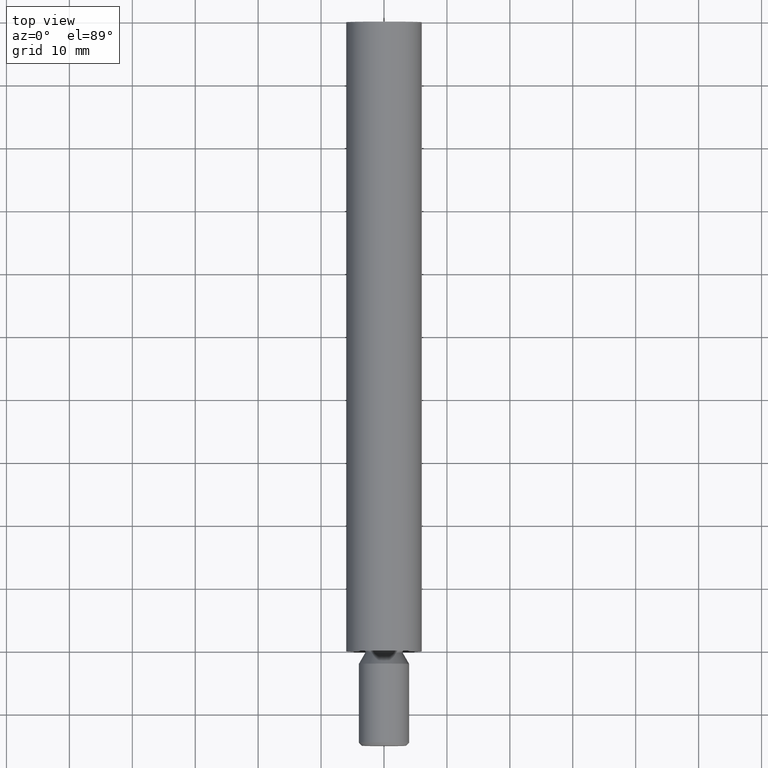
[diagram: clean part render]
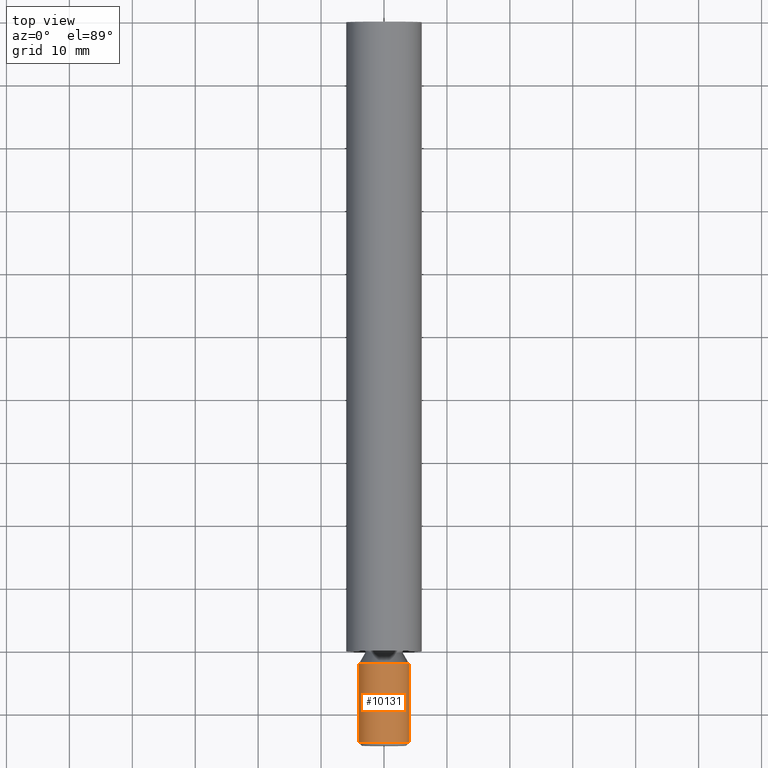
[diagram: same view with one face highlighted and labeled with its STEP entity id]
A machine part, top view. The second image highlights one B-rep face of the part: STEP entity #10131.
In plain terms, the highlighted cylindrical surface (bore or boss wall) has radius 4 mm, axis along (0, -1, -0).
Its self-contained STEP definition (entity closure, byte-faithful):
#600 = CARTESIAN_POINT ( 'NONE',  ( 1.925929944387235853E-31, -15.00000000000000000, 0.000000000000000000 ) ) ;
#670 = CIRCLE ( 'NONE', #5028, 4.000000000000000000 ) ;
#1924 = CARTESIAN_POINT ( 'NONE',  ( 4.000000000000000888, -14.50000000000001599, 0.000000000000000000 ) ) ;
#3131 = FACE_OUTER_BOUND ( 'NONE', #3891, .T. ) ;
#3415 = DIRECTION ( 'NONE',  ( -1.674721690771513454E-33, 1.000000000000000000, 0.000000000000000000 ) ) ;
#3878 = EDGE_LOOP ( 'NONE', ( #12057 ) ) ;
#3891 = EDGE_LOOP ( 'NONE', ( #4117 ) ) ;
#4117 = ORIENTED_EDGE ( 'NONE', *, *, #13401, .T. ) ;
#4504 = CIRCLE ( 'NONE', #9214, 4.000000000000000888 ) ;
#5028 = AXIS2_PLACEMENT_3D ( 'NONE', #12288, #13339, #11016 ) ;
#5586 = DIRECTION ( 'NONE',  ( 1.000000000000000000, 0.000000000000000000, 0.000000000000000000 ) ) ;
#5670 = DIRECTION ( 'NONE',  ( 1.674721690771509348E-33, -1.000000000000000000, -0.000000000000000000 ) ) ;
#6544 = CYLINDRICAL_SURFACE ( 'NONE', #9190, 4.000000000000000888 ) ;
#8176 = VERTEX_POINT ( 'NONE', #10375 ) ;
#8676 = VERTEX_POINT ( 'NONE', #1924 ) ;
#8723 = FACE_OUTER_BOUND ( 'NONE', #3878, .T. ) ;
#9190 = AXIS2_PLACEMENT_3D ( 'NONE', #600, #5670, #12040 ) ;
#9214 = AXIS2_PLACEMENT_3D ( 'NONE', #10877, #3415, #5586 ) ;
#9832 = EDGE_CURVE ( 'NONE', #8176, #8176, #670, .T. ) ;
#10131 = ADVANCED_FACE ( 'NONE', ( #3131, #8723 ), #6544, .T. ) ;
#10375 = CARTESIAN_POINT ( 'NONE',  ( 4.000000000000000000, -2.000000000000000000, 0.000000000000000000 ) ) ;
#10877 = CARTESIAN_POINT ( 'NONE',  ( 1.917556335933378563E-31, -14.50000000000001599, 0.000000000000000000 ) ) ;
#11016 = DIRECTION ( 'NONE',  ( 1.000000000000000000, 0.000000000000000000, 0.000000000000000000 ) ) ;
#12040 = DIRECTION ( 'NONE',  ( 1.000000000000000000, 0.000000000000000000, 0.000000000000000000 ) ) ;
#12057 = ORIENTED_EDGE ( 'NONE', *, *, #9832, .T. ) ;
#12288 = CARTESIAN_POINT ( 'NONE',  ( 1.708216124586939521E-31, -2.000000000000000000, 0.000000000000000000 ) ) ;
#13339 = DIRECTION ( 'NONE',  ( 1.674721690771509348E-33, -1.000000000000000000, -0.000000000000000000 ) ) ;
#13401 = EDGE_CURVE ( 'NONE', #8676, #8676, #4504, .T. ) ;